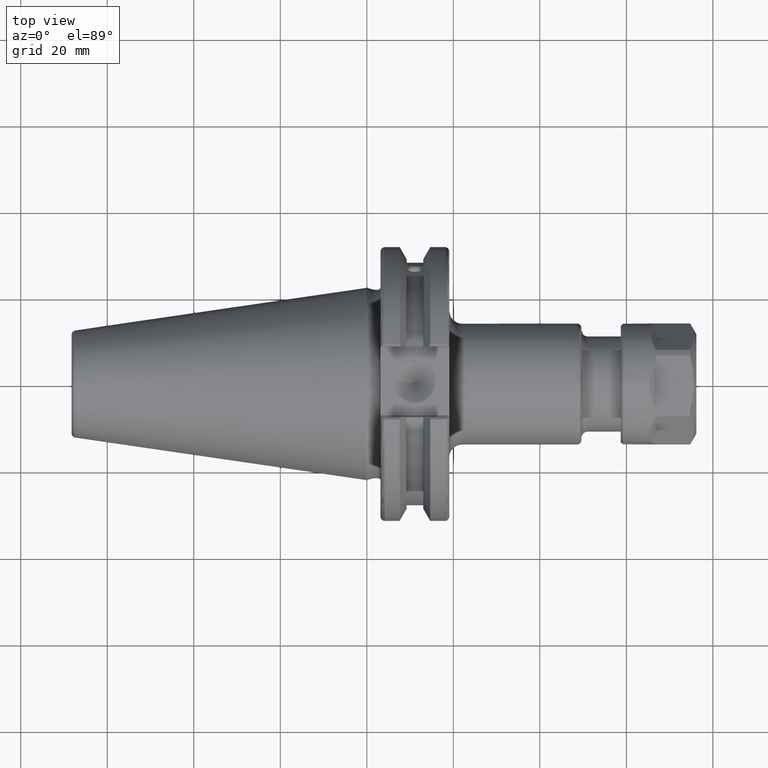
[diagram: clean part render]
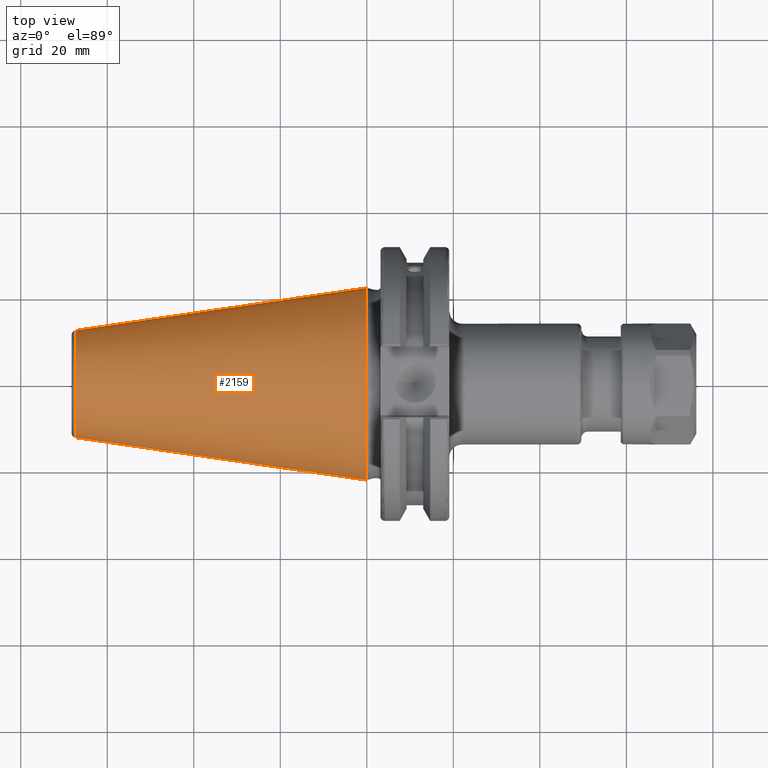
[diagram: same view with one face highlighted and labeled with its STEP entity id]
A machine part, top view. The second image highlights one B-rep face of the part: STEP entity #2159.
In plain terms, the highlighted conical surface has half-angle 8.297 deg.
Its self-contained STEP definition (entity closure, byte-faithful):
#329=FACE_OUTER_BOUND('',#466,.T.);
#466=EDGE_LOOP('',(#1787,#1788,#1789,#1790,#1791));
#614=LINE('',#3937,#746);
#746=VECTOR('',#2935,17.2484375);
#864=CIRCLE('',#2437,12.3966635780937);
#865=CIRCLE('',#2438,12.3966635780937);
#869=CIRCLE('',#2444,22.225);
#1056=VERTEX_POINT('',#3924);
#1057=VERTEX_POINT('',#3925);
#1060=VERTEX_POINT('',#3935);
#1324=EDGE_CURVE('',#1056,#1057,#864,.T.);
#1325=EDGE_CURVE('',#1057,#1056,#865,.T.);
#1329=EDGE_CURVE('',#1060,#1060,#869,.T.);
#1330=EDGE_CURVE('',#1060,#1057,#614,.T.);
#1787=ORIENTED_EDGE('',*,*,#1329,.F.);
#1788=ORIENTED_EDGE('',*,*,#1330,.T.);
#1789=ORIENTED_EDGE('',*,*,#1324,.F.);
#1790=ORIENTED_EDGE('',*,*,#1325,.F.);
#1791=ORIENTED_EDGE('',*,*,#1330,.F.);
#2088=CONICAL_SURFACE('',#2443,17.2484375,0.144812498238939);
#2159=ADVANCED_FACE('',(#329),#2088,.T.);
#2437=AXIS2_PLACEMENT_3D('',#3926,#2919,#2920);
#2438=AXIS2_PLACEMENT_3D('',#3927,#2921,#2922);
#2443=AXIS2_PLACEMENT_3D('',#3934,#2931,#2932);
#2444=AXIS2_PLACEMENT_3D('',#3936,#2933,#2934);
#2919=DIRECTION('center_axis',(-1.,0.,0.));
#2920=DIRECTION('ref_axis',(0.,-1.,3.06161699786838E-17));
#2921=DIRECTION('center_axis',(-1.,0.,0.));
#2922=DIRECTION('ref_axis',(0.,-1.,3.06161699786838E-17));
#2931=DIRECTION('center_axis',(1.,0.,0.));
#2932=DIRECTION('ref_axis',(0.,1.,0.));
#2933=DIRECTION('center_axis',(1.,0.,0.));
#2934=DIRECTION('ref_axis',(0.,0.,-1.));
#2935=DIRECTION('',(-0.989532981063282,0.144306893071729,1.76724974695192E-17));
#3924=CARTESIAN_POINT('',(-67.3943068930717,-1.5181534371019E-15,12.3966635780937));
#3925=CARTESIAN_POINT('',(-67.3943068930718,-12.3966635780937,-1.5181534371019E-15));
#3926=CARTESIAN_POINT('Origin',(-67.3943068930717,0.,-1.89769179637738E-15));
#3927=CARTESIAN_POINT('Origin',(-67.3943068930717,0.,-1.89769179637738E-15));
#3934=CARTESIAN_POINT('Origin',(-34.125,0.,0.));
#3935=CARTESIAN_POINT('',(0.,-22.225,-2.72177751110499E-15));
#3936=CARTESIAN_POINT('Origin',(0.,0.,0.));
#3937=CARTESIAN_POINT('',(-34.125,-17.2484375,-2.11232437746682E-15));